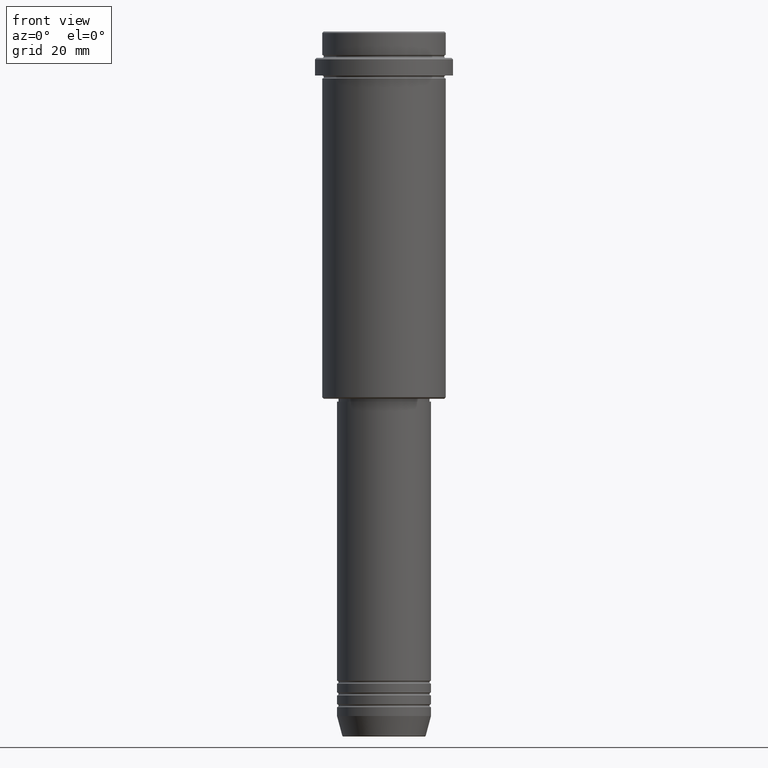
[diagram: clean part render]
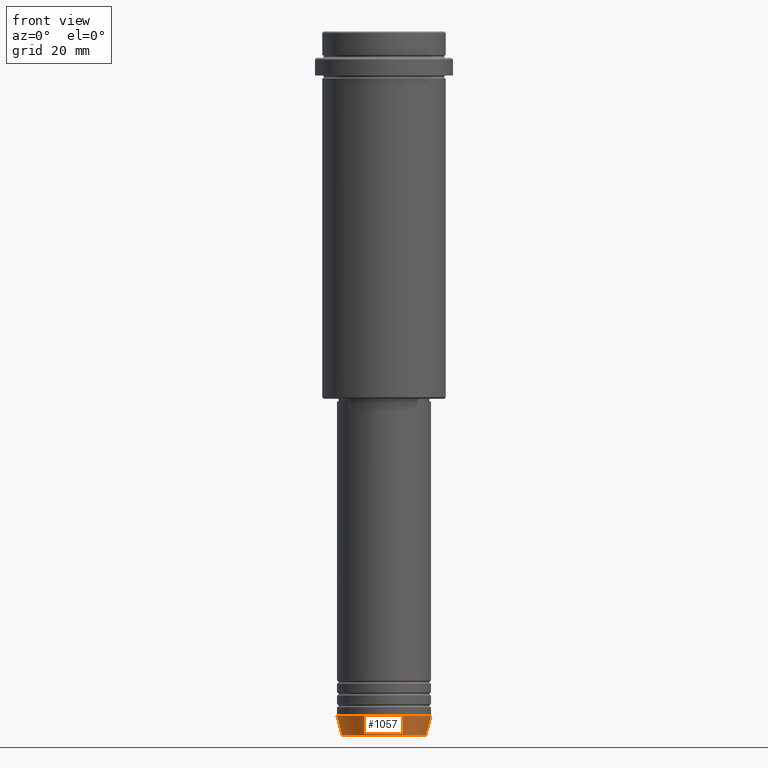
[diagram: same view with one face highlighted and labeled with its STEP entity id]
A machine part, front view. The second image highlights one B-rep face of the part: STEP entity #1057.
In plain terms, the highlighted conical surface has half-angle 15 deg.
Its self-contained STEP definition (entity closure, byte-faithful):
#7 = CARTESIAN_POINT ( 'NONE',  ( -16.00000000000000000, 1.959434878635765131E-15, -232.9999999999999716 ) ) ;
#67 = ORIENTED_EDGE ( 'NONE', *, *, #341, .T. ) ;
#113 = DIRECTION ( 'NONE',  ( -0.2588190451025213501, 3.169619151431772337E-17, 0.9659258262890680902 ) ) ;
#178 = AXIS2_PLACEMENT_3D ( 'NONE', #448, #855, #543 ) ;
#207 = EDGE_CURVE ( 'NONE', #1147, #1168, #1402, .T. ) ;
#258 = ORIENTED_EDGE ( 'NONE', *, *, #207, .T. ) ;
#309 = VECTOR ( 'NONE', #113, 1000.000000000000000 ) ;
#341 = EDGE_CURVE ( 'NONE', #1168, #888, #976, .T. ) ;
#412 = CARTESIAN_POINT ( 'NONE',  ( 0.000000000000000000, 0.000000000000000000, -232.9999999999999716 ) ) ;
#440 = CARTESIAN_POINT ( 'NONE',  ( 14.22365507213718239, 0.000000000000000000, -239.6294095225512422 ) ) ;
#447 = CONICAL_SURFACE ( 'NONE', #680, 16.00000000000000000, 0.2617993877991500740 ) ;
#448 = CARTESIAN_POINT ( 'NONE',  ( 0.000000000000000000, 0.000000000000000000, -232.9999999999999716 ) ) ;
#451 = EDGE_CURVE ( 'NONE', #1147, #723, #1101, .T. ) ;
#469 = ORIENTED_EDGE ( 'NONE', *, *, #451, .F. ) ;
#533 = DIRECTION ( 'NONE',  ( 0.2588190451025213501, 0.000000000000000000, 0.9659258262890680902 ) ) ;
#536 = FACE_OUTER_BOUND ( 'NONE', #567, .T. ) ;
#543 = DIRECTION ( 'NONE',  ( 1.000000000000000000, 0.000000000000000000, 0.000000000000000000 ) ) ;
#562 = CARTESIAN_POINT ( 'NONE',  ( 16.00000000000000000, 0.000000000000000000, -232.9999999999999716 ) ) ;
#566 = CARTESIAN_POINT ( 'NONE',  ( -14.22365507213718239, 1.850665122131322942E-15, -239.6294095225512422 ) ) ;
#567 = EDGE_LOOP ( 'NONE', ( #469, #258, #67, #636 ) ) ;
#636 = ORIENTED_EDGE ( 'NONE', *, *, #1304, .F. ) ;
#680 = AXIS2_PLACEMENT_3D ( 'NONE', #412, #1305, #992 ) ;
#681 = CIRCLE ( 'NONE', #178, 16.00000000000000000 ) ;
#723 = VERTEX_POINT ( 'NONE', #902 ) ;
#725 = VECTOR ( 'NONE', #533, 1000.000000000000000 ) ;
#818 = DIRECTION ( 'NONE',  ( -0.000000000000000000, -0.000000000000000000, 1.000000000000000000 ) ) ;
#843 = CARTESIAN_POINT ( 'NONE',  ( 16.00000000000000000, 0.000000000000000000, -232.9999999999999716 ) ) ;
#855 = DIRECTION ( 'NONE',  ( -0.000000000000000000, -0.000000000000000000, 1.000000000000000000 ) ) ;
#888 = VERTEX_POINT ( 'NONE', #562 ) ;
#902 = CARTESIAN_POINT ( 'NONE',  ( -16.00000000000000000, 1.959434878635765131E-15, -232.9999999999999716 ) ) ;
#976 = LINE ( 'NONE', #843, #725 ) ;
#992 = DIRECTION ( 'NONE',  ( 1.000000000000000000, 0.000000000000000000, 0.000000000000000000 ) ) ;
#999 = AXIS2_PLACEMENT_3D ( 'NONE', #1357, #818, #1258 ) ;
#1057 = ADVANCED_FACE ( 'NONE', ( #536 ), #447, .T. ) ;
#1101 = LINE ( 'NONE', #7, #309 ) ;
#1147 = VERTEX_POINT ( 'NONE', #566 ) ;
#1168 = VERTEX_POINT ( 'NONE', #440 ) ;
#1258 = DIRECTION ( 'NONE',  ( 1.000000000000000000, 0.000000000000000000, 0.000000000000000000 ) ) ;
#1304 = EDGE_CURVE ( 'NONE', #723, #888, #681, .T. ) ;
#1305 = DIRECTION ( 'NONE',  ( -0.000000000000000000, -0.000000000000000000, 1.000000000000000000 ) ) ;
#1357 = CARTESIAN_POINT ( 'NONE',  ( 0.000000000000000000, 0.000000000000000000, -239.6294095225512422 ) ) ;
#1402 = CIRCLE ( 'NONE', #999, 14.22365507213718239 ) ;